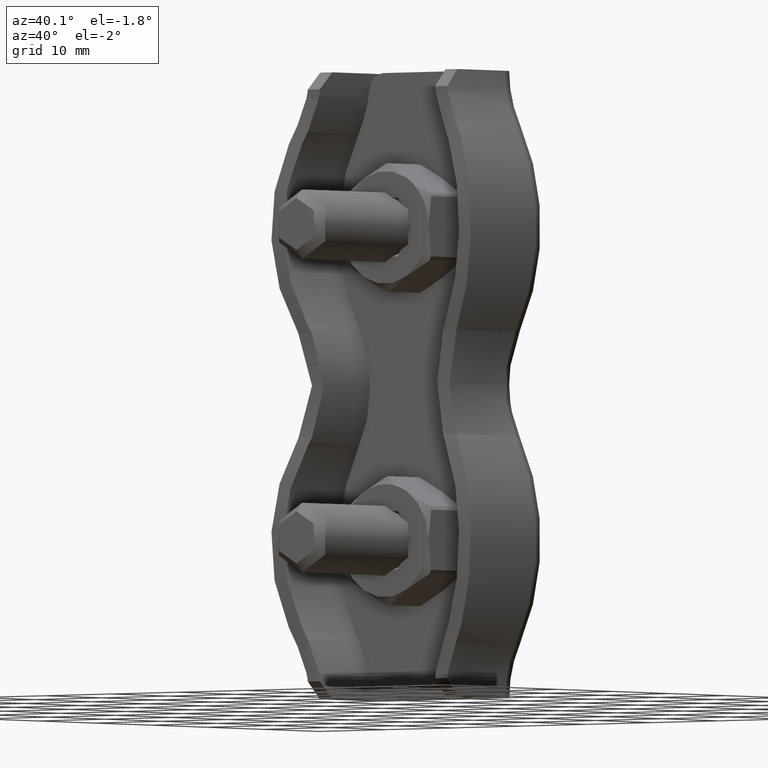
[diagram: clean part render]
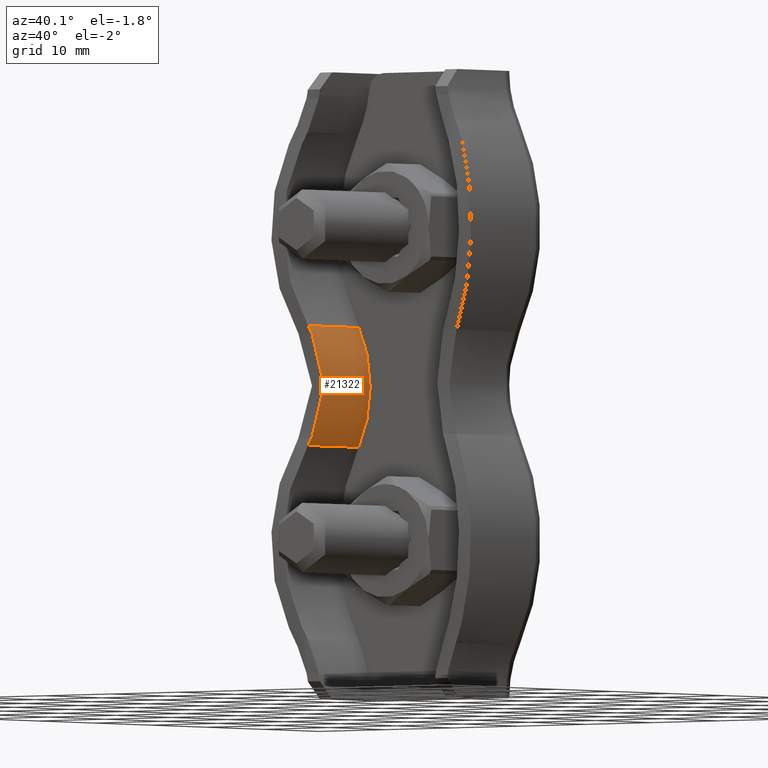
[diagram: same view with one face highlighted and labeled with its STEP entity id]
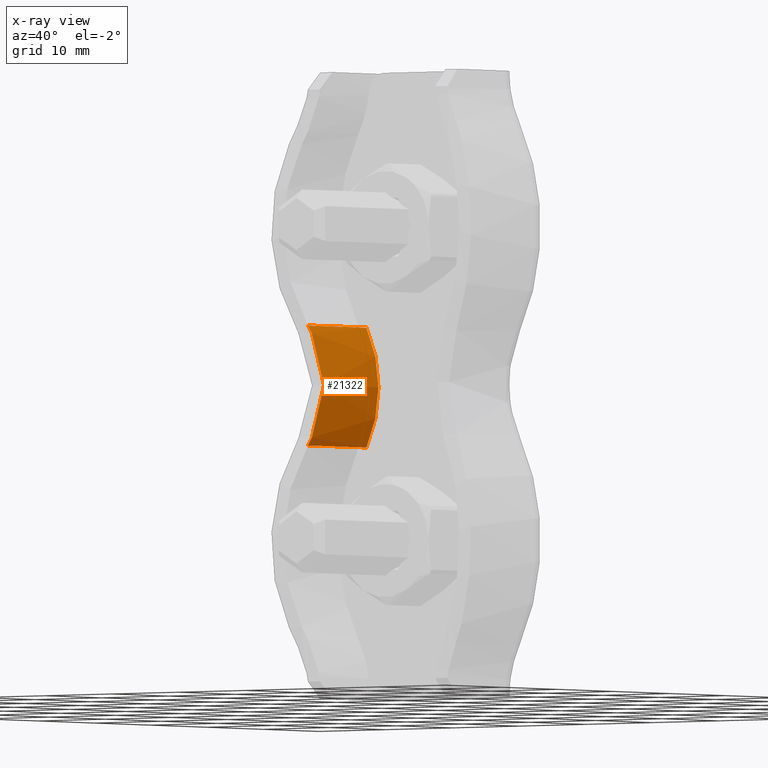
[diagram: x-ray of the same camera — body ghosted, the highlighted face saturated]
A machine part, auxiliary view. The second image highlights one B-rep face of the part: STEP entity #21322.
The next image is the same camera in x-ray: the body ghosted, the highlighted face saturated — about 0% of this face is hidden behind the body in this view.
In plain terms, the highlighted cylindrical surface (partial cylindrical patch) has radius 14.0727 mm, axis along (0, 1, 0).
Its self-contained STEP definition (entity closure, byte-faithful):
#80 = DIRECTION ( 'NONE',  ( -0.000000000000000000, 1.000000000000000000, -0.000000000000000000 ) ) ;
#111 = CARTESIAN_POINT ( 'NONE',  ( -9.983728433329511986, -10.82350061559595744, -6.298201786612473541 ) ) ;
#398 = VERTEX_POINT ( 'NONE', #14984 ) ;
#506 = VECTOR ( 'NONE', #80, 1000.000000000000000 ) ;
#584 = DIRECTION ( 'NONE',  ( -1.725762450083516916E-15, 0.000000000000000000, 1.000000000000000000 ) ) ;
#702 = CARTESIAN_POINT ( 'NONE',  ( -9.843172437928579654, -10.76666666666666039, 6.000000000000000888 ) ) ;
#1127 = CARTESIAN_POINT ( 'NONE',  ( -9.070363276355664084, -10.44698181785630098, 4.097561283061433635 ) ) ;
#1300 = ORIENTED_EDGE ( 'NONE', *, *, #13089, .F. ) ;
#1386 = AXIS2_PLACEMENT_3D ( 'NONE', #5825, #7783, #584 ) ;
#1450 = CARTESIAN_POINT ( 'NONE',  ( -8.644049252668528638, -10.26303412853322961, 2.075058470866931959 ) ) ;
#1555 = CARTESIAN_POINT ( 'NONE',  ( -10.29644504801257021, -0.5000000000000004441, -6.880002311537473325 ) ) ;
#1596 = VERTEX_POINT ( 'NONE', #15679 ) ;
#1885 = EDGE_CURVE ( 'NONE', #7320, #20622, #3793, .T. ) ;
#3246 = B_SPLINE_CURVE_WITH_KNOTS ( 'NONE', 3,
 ( #3860, #111, #9454, #3619 ),
 .UNSPECIFIED., .F., .F.,
 ( 4, 4 ),
 ( 2.430161233031909870E-17, 0.001002944607499558008 ),
 .UNSPECIFIED. ) ;
#3619 = CARTESIAN_POINT ( 'NONE',  ( -10.29644504801257021, -10.92802886282409602, -6.880002311537474213 ) ) ;
#3703 = EDGE_CURVE ( 'NONE', #12765, #1596, #21277, .T. ) ;
#3793 = LINE ( 'NONE', #11322, #14356 ) ;
#3860 = CARTESIAN_POINT ( 'NONE',  ( -9.843172437928581431, -10.76666666666666750, -6.000000000000003553 ) ) ;
#4295 = CARTESIAN_POINT ( 'NONE',  ( -10.29644504801256311, -10.92802886282409602, 6.880002311537461779 ) ) ;
#4731 = ORIENTED_EDGE ( 'NONE', *, *, #22692, .T. ) ;
#4883 = CARTESIAN_POINT ( 'NONE',  ( -9.843172437928581431, -10.76666666666666750, -6.000000000000003553 ) ) ;
#5364 = FACE_OUTER_BOUND ( 'NONE', #12051, .T. ) ;
#5825 = CARTESIAN_POINT ( 'NONE',  ( -22.57269503546099187, -0.5000000000000004441, 0.000000000000000000 ) ) ;
#6759 = CARTESIAN_POINT ( 'NONE',  ( -8.500142509878086727, -10.20006257786877413, 0.5203090199382260916 ) ) ;
#7320 = VERTEX_POINT ( 'NONE', #7874 ) ;
#7434 = CARTESIAN_POINT ( 'NONE',  ( -9.843172437928581431, -10.76666666666666750, -6.000000000000003553 ) ) ;
#7783 = DIRECTION ( 'NONE',  ( -0.000000000000000000, -1.000000000000000000, -0.000000000000000000 ) ) ;
#7874 = CARTESIAN_POINT ( 'NONE',  ( -10.29644504801257021, -10.92802886282409602, -6.880002311537474213 ) ) ;
#9337 = CARTESIAN_POINT ( 'NONE',  ( -10.29644504801256311, -13.19999999999999929, 6.880002311537461779 ) ) ;
#9454 = CARTESIAN_POINT ( 'NONE',  ( -10.13479389449563328, -10.87721696745865785, -6.591562005637370270 ) ) ;
#9819 = CARTESIAN_POINT ( 'NONE',  ( -10.13479389449563151, -10.87721696745867028, 6.591562005637358723 ) ) ;
#10246 = CARTESIAN_POINT ( 'NONE',  ( -9.403215591366368642, -10.58876970199232126, 5.066593229957871536 ) ) ;
#10821 = CARTESIAN_POINT ( 'NONE',  ( -8.641464328603317924, -10.26190691184184267, -2.056517881263586034 ) ) ;
#11049 = VERTEX_POINT ( 'NONE', #7434 ) ;
#11322 = CARTESIAN_POINT ( 'NONE',  ( -10.29644504801257021, -13.19999999999999929, -6.880002311537473325 ) ) ;
#11371 = EDGE_CURVE ( 'NONE', #11049, #7320, #3246, .T. ) ;
#12051 = EDGE_LOOP ( 'NONE', ( #1300, #15415, #19304, #20956, #16534, #4731 ) ) ;
#12186 = EDGE_CURVE ( 'NONE', #1596, #11049, #17281, .T. ) ;
#12275 = CARTESIAN_POINT ( 'NONE',  ( -9.843172437928579654, -10.76666666666666039, 6.000000000000000888 ) ) ;
#12375 = AXIS2_PLACEMENT_3D ( 'NONE', #14863, #18698, #12919 ) ;
#12385 = CARTESIAN_POINT ( 'NONE',  ( -10.29644504801256311, -10.92802886282409602, 6.880002311537461779 ) ) ;
#12437 = CARTESIAN_POINT ( 'NONE',  ( -9.068509225358363679, -10.44619995637071597, -4.093578273383656985 ) ) ;
#12695 = CARTESIAN_POINT ( 'NONE',  ( -9.403123963088308557, -10.58873265201190961, -5.066398832585179868 ) ) ;
#12765 = VERTEX_POINT ( 'NONE', #12385 ) ;
#12919 = DIRECTION ( 'NONE',  ( 0.000000000000000000, 0.000000000000000000, 1.000000000000000000 ) ) ;
#13089 = EDGE_CURVE ( 'NONE', #12765, #398, #16959, .T. ) ;
#14301 = CARTESIAN_POINT ( 'NONE',  ( -8.730678104746923296, -10.30078489095962091, 2.589376239751280728 ) ) ;
#14356 = VECTOR ( 'NONE', #22720, 1000.000000000000000 ) ;
#14863 = CARTESIAN_POINT ( 'NONE',  ( -22.57269503546099187, -13.19999999999999929, 0.000000000000000000 ) ) ;
#14984 = CARTESIAN_POINT ( 'NONE',  ( -10.29644504801256311, -0.5000000000000004441, 6.880002311537461779 ) ) ;
#15415 = ORIENTED_EDGE ( 'NONE', *, *, #3703, .T. ) ;
#15617 = CYLINDRICAL_SURFACE ( 'NONE', #12375, 14.07269503546098832 ) ;
#15679 = CARTESIAN_POINT ( 'NONE',  ( -9.843172437928579654, -10.76666666666666039, 6.000000000000000888 ) ) ;
#16211 = CARTESIAN_POINT ( 'NONE',  ( -8.528059122439037409, -10.21235179242825275, -1.027938166576665591 ) ) ;
#16534 = ORIENTED_EDGE ( 'NONE', *, *, #1885, .T. ) ;
#16959 = LINE ( 'NONE', #9337, #506 ) ;
#17281 = B_SPLINE_CURVE_WITH_KNOTS ( 'NONE', 3,
 ( #12275, #10246, #1127, #14301, #1450, #21727, #6759, #21897, #16211, #10821, #20038, #12437, #12695, #4883 ),
 .UNSPECIFIED., .F., .F.,
 ( 4, 2, 2, 2, 2, 2, 4 ),
 ( 0.000000000000000000, 0.003099029131872555517, 0.004648543697808833058, 0.006198058263745111034, 0.007747572829681388142, 0.009297087395617666117, 0.01239611652749021860 ),
 .UNSPECIFIED. ) ;
#17543 = CARTESIAN_POINT ( 'NONE',  ( -9.983728433329519092, -10.82350061559596099, 6.298201786612494857 ) ) ;
#18698 = DIRECTION ( 'NONE',  ( -0.000000000000000000, 1.000000000000000000, -0.000000000000000000 ) ) ;
#19304 = ORIENTED_EDGE ( 'NONE', *, *, #12186, .T. ) ;
#20038 = CARTESIAN_POINT ( 'NONE',  ( -8.727420610821058133, -10.29937469945354067, -2.572749433145765430 ) ) ;
#20622 = VERTEX_POINT ( 'NONE', #1555 ) ;
#20956 = ORIENTED_EDGE ( 'NONE', *, *, #11371, .T. ) ;
#21198 = CIRCLE ( 'NONE', #1386, 14.07269503546098832 ) ;
#21277 = B_SPLINE_CURVE_WITH_KNOTS ( 'NONE', 3,
 ( #4295, #9819, #17543, #702 ),
 .UNSPECIFIED., .F., .F.,
 ( 4, 4 ),
 ( 8.673617379884035472E-19, 0.001002944607499524398 ),
 .UNSPECIFIED. ) ;
#21322 = ADVANCED_FACE ( 'NONE', ( #5364 ), #15617, .T. ) ;
#21727 = CARTESIAN_POINT ( 'NONE',  ( -8.528622781137489284, -10.21260036170203200, 1.037822487403170957 ) ) ;
#21897 = CARTESIAN_POINT ( 'NONE',  ( -8.499858553725390564, -10.19993788917279787, -0.5125713802490955429 ) ) ;
#22692 = EDGE_CURVE ( 'NONE', #20622, #398, #21198, .T. ) ;
#22720 = DIRECTION ( 'NONE',  ( -0.000000000000000000, 1.000000000000000000, -0.000000000000000000 ) ) ;